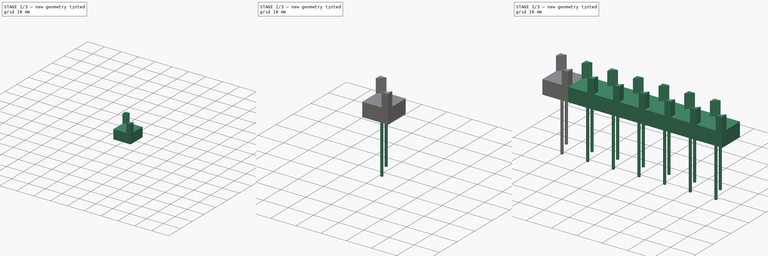
[diagram: build sequence overview — one tinted view per stage of 3, left to right]
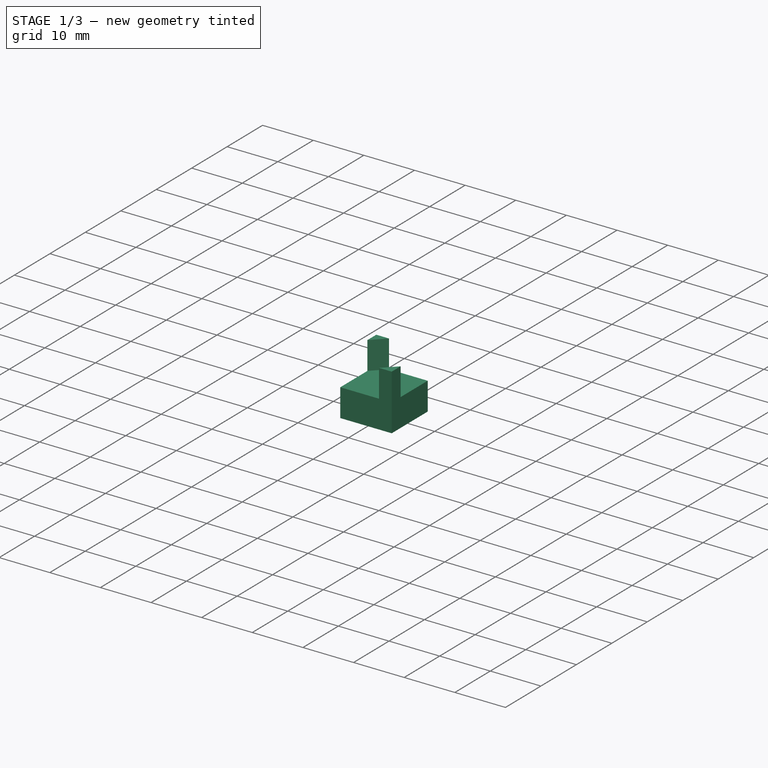
[diagram: stage 1 of 3 — iso view after this stage's code; geometry added in this stage tinted green]
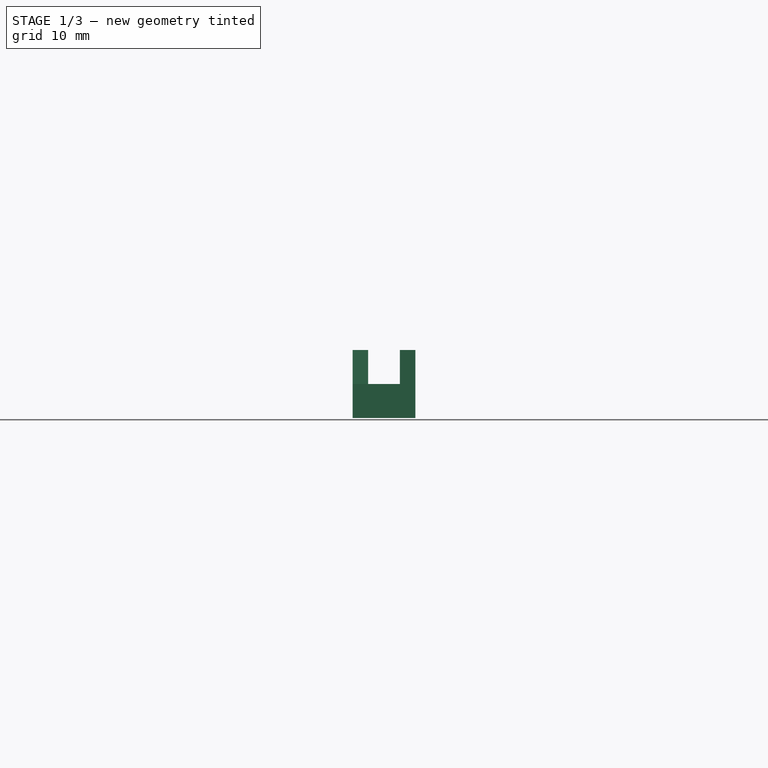
[diagram: stage 1 of 3 — front view after this stage's code; geometry added in this stage tinted green]
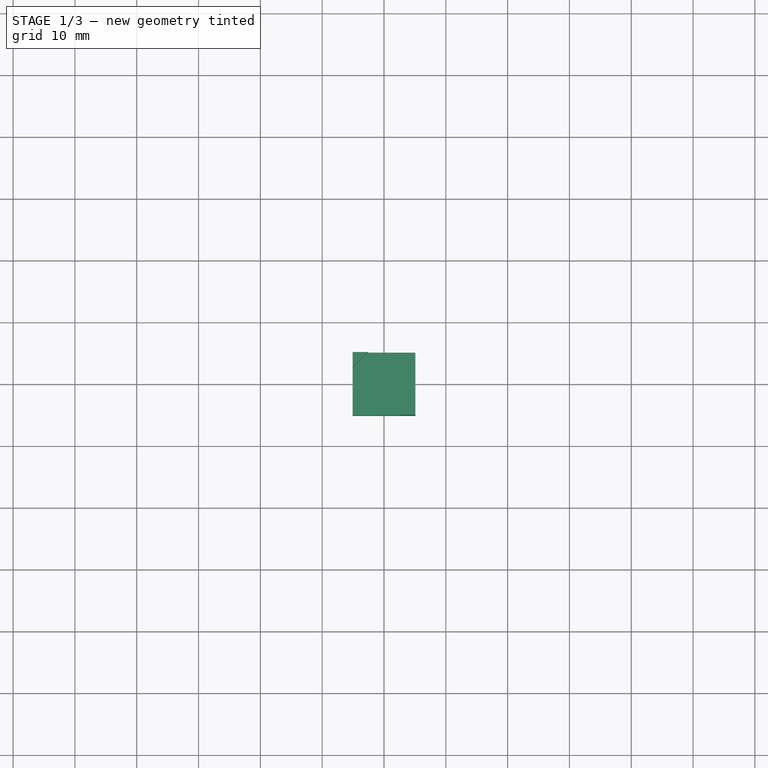
[diagram: stage 1 of 3 — top view after this stage's code; geometry added in this stage tinted green]
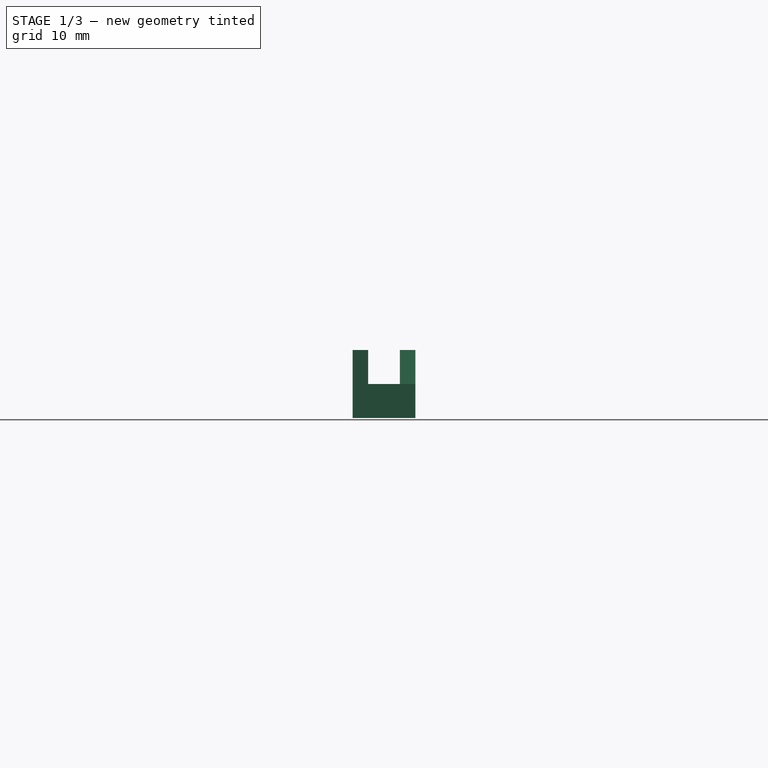
[diagram: stage 1 of 3 — right view after this stage's code; geometry added in this stage tinted green]
FCSTD DOCUMENT  (FreeCAD 0.21R33694 (Git))
Label: Display
License: All rights reserved
LicenseURL: http://en.wikipedia.org/wiki/All_rights_reserved
objects: App::Link×6, Sketcher::SketchObject×4, PartDesign::Pad×4, PartDesign::Body×2, PartDesign::LinearPattern×1, App::Part×1
note: 15 computed .brp shape members not serialized (recipe doc carries the construction recipe); baked Part::Feature solids carry a one-line shape summary decoded from their .brp

FEATURE [Sketcher::SketchObject] Sketch
  FullyConstrained = true
  MapMode = 5
  Support = -> [XY_Plane001]
  sketch-geometry (5):
    g0: LineSegment StartX=-5.075 StartY=5.075 StartZ=0 EndX=-5.075 EndY=-5.075 EndZ=0
    g1: LineSegment StartX=-5.075 StartY=-5.075 StartZ=0 EndX=5.075 EndY=-5.075 EndZ=0
    g2: LineSegment StartX=5.075 StartY=-5.075 StartZ=0 EndX=5.075 EndY=5.075 EndZ=0
    g3: LineSegment StartX=5.075 StartY=5.075 StartZ=0 EndX=-5.075 EndY=5.075 EndZ=0
    g4: Circle CenterX=0 CenterY=0 CenterZ=0 NormalX=0 NormalY=0 NormalZ=1 AngleXU=0 Radius=7.17713
  constraints (14):
    c: Coincident(g0,g1)
    c: Coincident(g1,g2)
    c: Coincident(g2,g3)
    c: Coincident(g3,g0)
    c: Equal(g0,g1)
    c: Equal(g0,g2)
    c: Equal(g0,g3)
    c: PointOnObject(g0,g4)
    c: PointOnObject(g1,g4)
    c: PointOnObject(g2,g4)
    c: PointOnObject(g3,g4)
    c: Coincident(g4,g-1)
    c: Horizontal(g3)
    c: Distance(g3) = 10.15
FEATURE [PartDesign::Pad] Pad
  Direction = (0,0,1)
  Length = 5.5
  Length2 = 10
  Profile = -> Sketch
  ReferenceAxis = -> Sketch [N_Axis]
  Type = 0
FEATURE [Sketcher::SketchObject] Sketch001
  ExternalGeometry = -> [Pad]
  FullyConstrained = true
  MapMode = 5
  Placement = pos=(0,0,5.5) rot=(0,0,1;0rad)
  Support = -> [Pad]
  sketch-geometry (6):
    g0: LineSegment StartX=-5.075 StartY=2.575 StartZ=0 EndX=-2.575 EndY=5.075 EndZ=0
    g1: LineSegment StartX=-5.075 StartY=5.075 StartZ=0 EndX=-5.075 EndY=2.575 EndZ=0
    g2: LineSegment StartX=-5.075 StartY=5.075 StartZ=0 EndX=-2.575 EndY=5.075 EndZ=0
    g3: LineSegment StartX=2.575 StartY=-5.075 StartZ=0 EndX=5.075 EndY=-5.075 EndZ=0
    g4: LineSegment StartX=5.075 StartY=-5.075 StartZ=0 EndX=5.075 EndY=-2.575 EndZ=0
    g5: LineSegment StartX=2.575 StartY=-5.075 StartZ=0 EndX=5.075 EndY=-2.575 EndZ=0
  constraints (16):
    c: PointOnObject(g0,g-3)
    c: PointOnObject(g0,g-4)
    c: Coincident(g1,g-4)
    c: Coincident(g1,g0)
    c: Coincident(g2,g1)
    c: Coincident(g2,g0)
    c: Equal(g2,g1)
    c: Distance(g2) = 2.5
    c: PointOnObject(g3,g-5)
    c: Coincident(g3,g-6)
    c: Coincident(g4,g3)
    c: PointOnObject(g4,g-6)
    c: Coincident(g5,g3)
    c: Coincident(g5,g4)
    c: Equal(g3,g4)
    c: Distance(g4) = 2.5
FEATURE [PartDesign::Pad] Pad001
  BaseFeature = -> Pad
  Direction = (0,0,1)
  Length = 5.5
  Length2 = 10
  Profile = -> Sketch001
  ReferenceAxis = -> Sketch001 [N_Axis]
  Type = 0
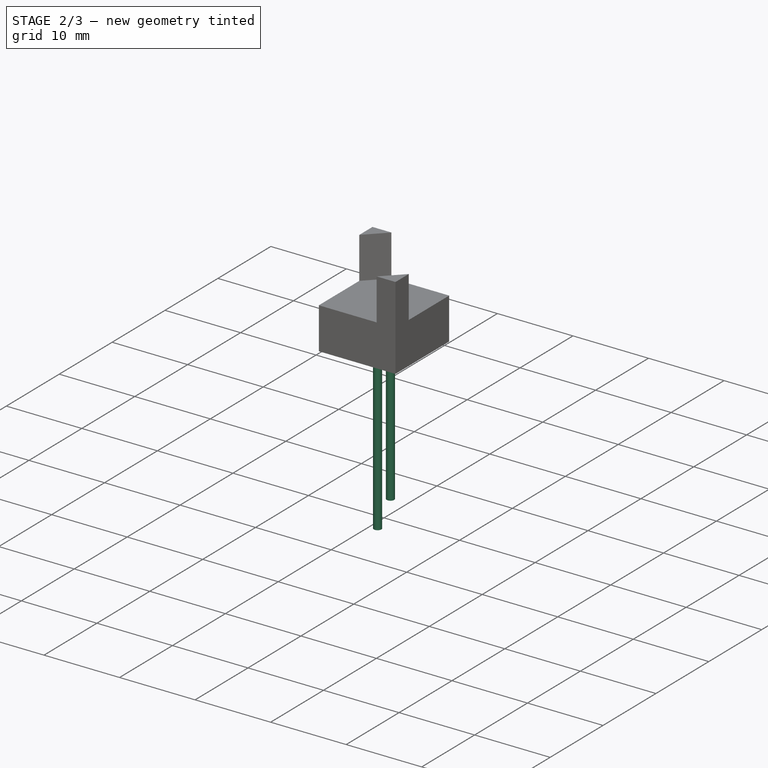
[diagram: stage 2 of 3 — iso view after this stage's code; geometry added in this stage tinted green]
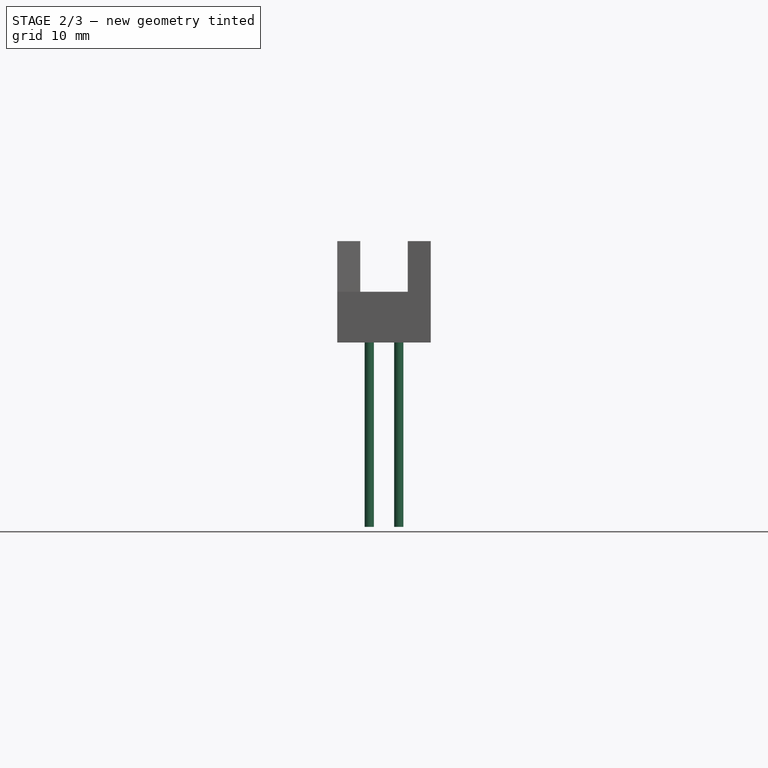
[diagram: stage 2 of 3 — front view after this stage's code; geometry added in this stage tinted green]
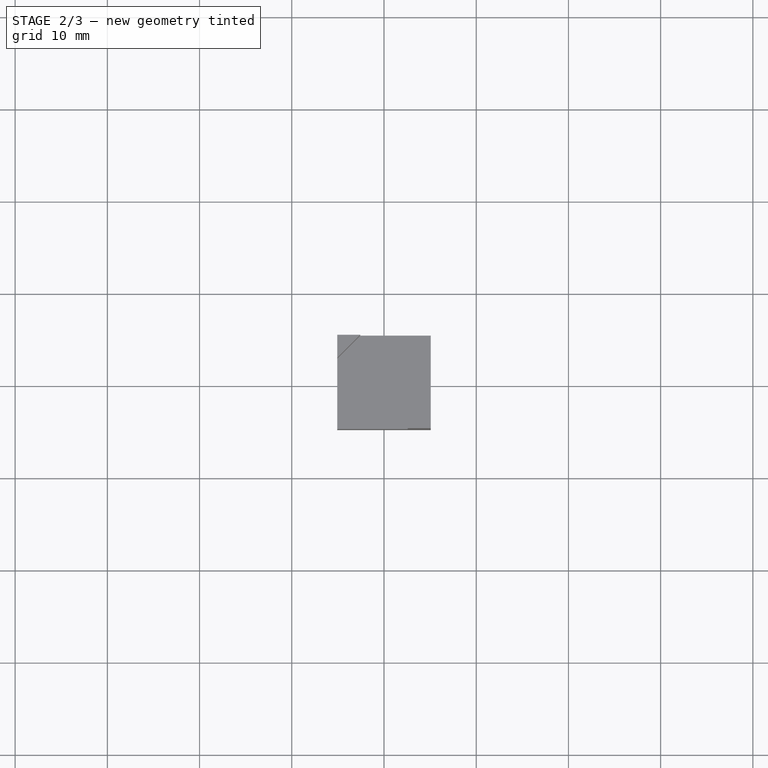
[diagram: stage 2 of 3 — top view after this stage's code; geometry added in this stage tinted green]
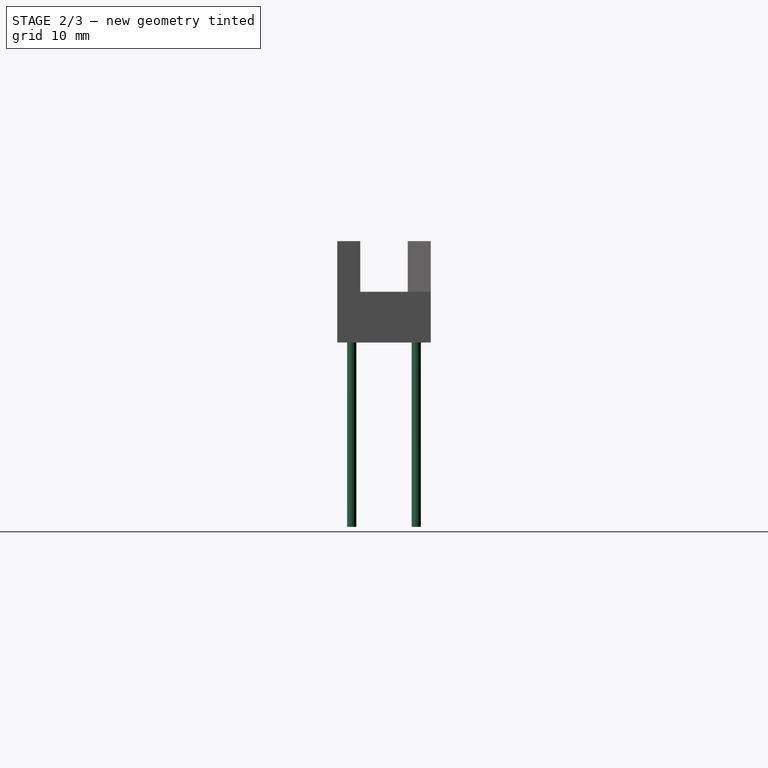
[diagram: stage 2 of 3 — right view after this stage's code; geometry added in this stage tinted green]
FEATURE [PartDesign::Body] Body001
  Group = -> [Sketch002,Pad002]
  Origin = -> Origin002
  Placement = pos=(0,0,26) rot=(0.486456,-0.196541,-0.851312;0.886231rad)
  Tip = -> Pad002
FEATURE [App::Link] Link  label="Body002"
  LinkPlacement = pos=(10.15,0,0) rot=(0,0,1;0rad)
  LinkTransform = true
  LinkedObject = -> Body001
  Placement = pos=(10.15,0,0) rot=(0,0,1;0rad)
FEATURE [App::Link] Link001  label="Body003"
  LinkPlacement = pos=(20.3,0,0) rot=(0,0,1;0rad)
  LinkTransform = true
  LinkedObject = -> Body001
  Placement = pos=(20.3,0,0) rot=(0,0,1;0rad)
FEATURE [App::Link] Link002  label="Body004"
  LinkPlacement = pos=(30.45,0,0) rot=(0,0,1;0rad)
  LinkTransform = true
  LinkedObject = -> Body001
  Placement = pos=(30.45,0,0) rot=(0,0,1;0rad)
FEATURE [App::Link] Link003  label="Body005"
  LinkPlacement = pos=(40.6,0,0) rot=(0,0,1;0rad)
  LinkTransform = true
  LinkedObject = -> Body001
  Placement = pos=(40.6,0,0) rot=(0,0,1;0rad)
FEATURE [App::Link] Link004  label="Body006"
  LinkPlacement = pos=(50.75,0,0) rot=(0,0,1;0rad)
  LinkTransform = true
  LinkedObject = -> Body001
  Placement = pos=(50.75,0,0) rot=(0,0,1;0rad)
FEATURE [App::Link] Link005  label="Body007"
  LinkPlacement = pos=(60.9,0,0) rot=(0,0,1;0rad)
  LinkTransform = true
  LinkedObject = -> Body001
  Placement = pos=(60.9,0,0) rot=(0,0,1;0rad)
FEATURE [Sketcher::SketchObject] Sketch003
  FullyConstrained = true
  MapMode = 5
  Placement = pos=(0,0,0) rot=(1,0,0;3.14159rad)
  Support = -> [Pad001]
  sketch-geometry (2):
    g0: Circle CenterX=1.6 CenterY=3.5 CenterZ=0 NormalX=0 NormalY=0 NormalZ=1 AngleXU=0 Radius=0.5
    g1: Circle CenterX=-1.6 CenterY=-3.5 CenterZ=0 NormalX=0 NormalY=0 NormalZ=1 AngleXU=0 Radius=0.5
  constraints (5):
    c: Symmetric(g0,g1,g-1)
    c: DistanceY(g1,g0) = 7
    c: DistanceX(g1,g0) = 3.2
    c: Diameter(g0) = 1
    c: Equal(g0,g1)
FEATURE [PartDesign::Pad] Pad003
  BaseFeature = -> Pad001
  Direction = (0,0,-1)
  Length = 20
  Length2 = 10
  Profile = -> Sketch003
  ReferenceAxis = -> Sketch003 [N_Axis]
  Type = 0
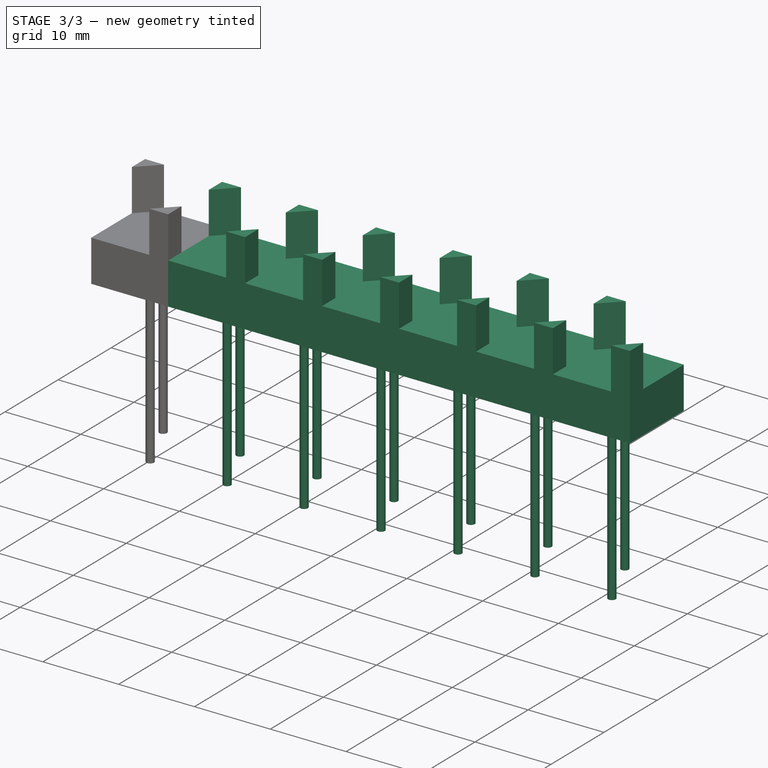
[diagram: stage 3 of 3 — iso view after this stage's code; geometry added in this stage tinted green]
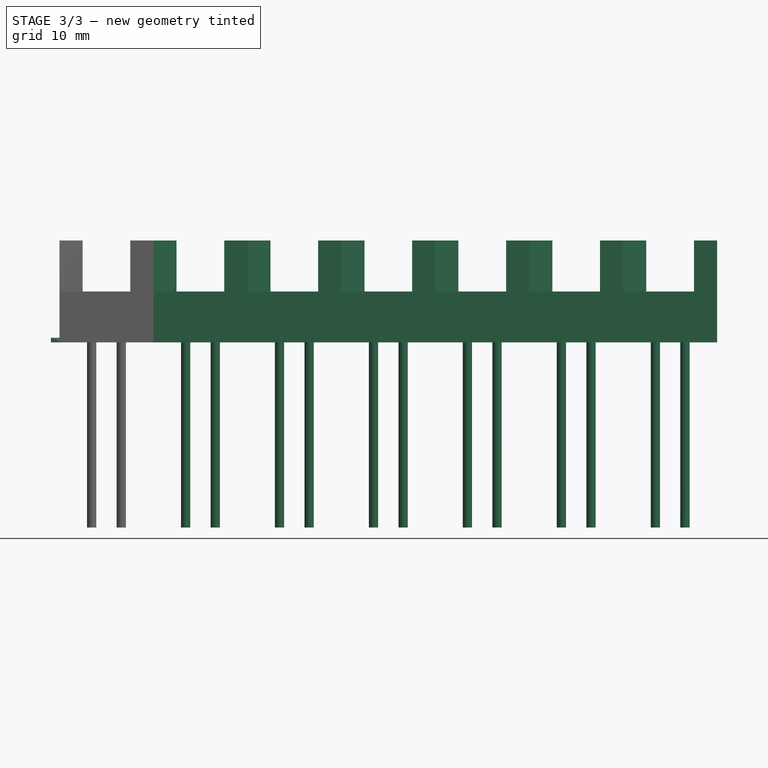
[diagram: stage 3 of 3 — front view after this stage's code; geometry added in this stage tinted green]
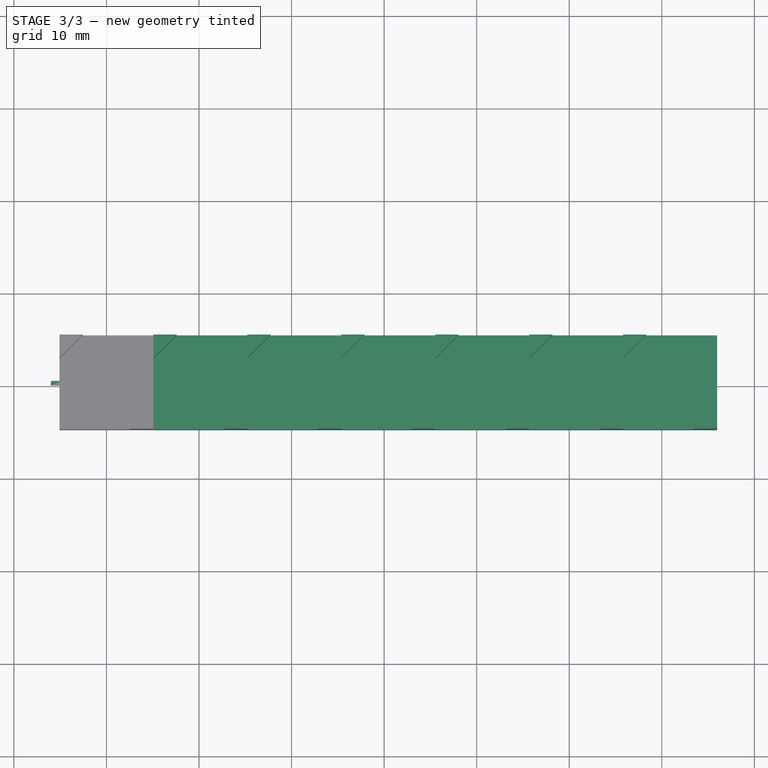
[diagram: stage 3 of 3 — top view after this stage's code; geometry added in this stage tinted green]
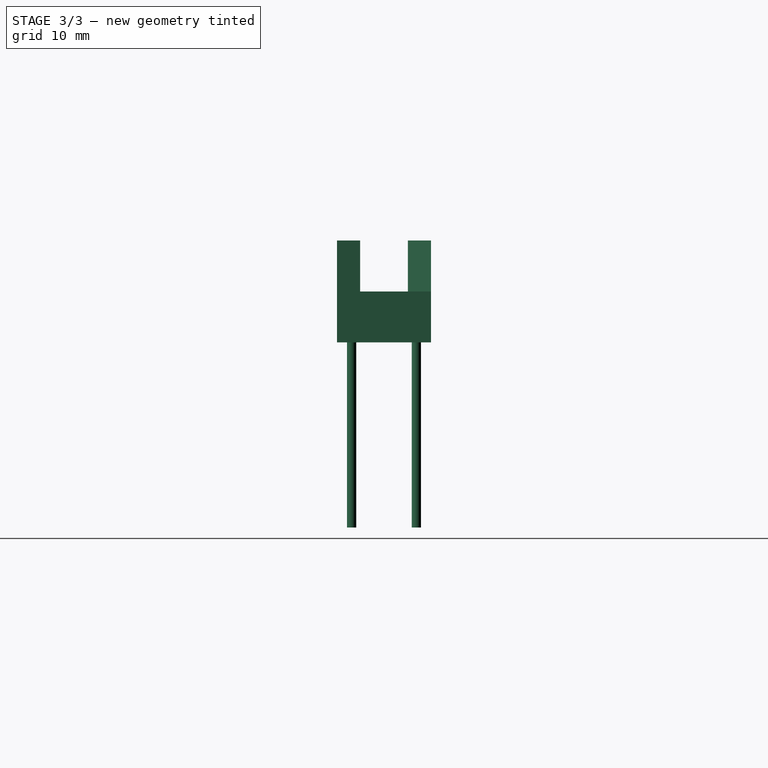
[diagram: stage 3 of 3 — right view after this stage's code; geometry added in this stage tinted green]
FEATURE [Sketcher::SketchObject] Sketch002
  FullyConstrained = true
  MapMode = 5
  Support = -> [XY_Plane002]
  sketch-geometry (9):
    g0: LineSegment StartX=-6 StartY=0.25 StartZ=0 EndX=-6 EndY=-0.25 EndZ=0
    g1: LineSegment StartX=-6 StartY=0.25 StartZ=0 EndX=-4.74342 EndY=0.25 EndZ=0
    g2: LineSegment StartX=-6 StartY=-0.25 StartZ=0 EndX=-4.74342 EndY=-0.25 EndZ=0
    g3: LineSegment StartX=4.74342 StartY=0.25 StartZ=0 EndX=6 EndY=0.25 EndZ=0
    g4: LineSegment StartX=6 StartY=0.25 StartZ=0 EndX=6 EndY=-0.25 EndZ=0
    g5: LineSegment StartX=6 StartY=-0.25 StartZ=0 EndX=4.74342 EndY=-0.25 EndZ=0
    g6: ArcOfCircle CenterX=-4e-16 CenterY=0 CenterZ=0 NormalX=0 NormalY=0 NormalZ=1 AngleXU=0 Radius=4.75 StartAngle=3.19425 EndAngle=6.23053
    g7: LineSegment StartX=4.74342 StartY=-0.25 StartZ=0 EndX=4.74342 EndY=0.25 EndZ=0
    g8: ArcOfCircle CenterX=-4e-16 CenterY=0 CenterZ=0 NormalX=0 NormalY=0 NormalZ=1 AngleXU=0 Radius=4.75 StartAngle=0.0526559 EndAngle=3.08894
  constraints (24):
    c: Coincident(g1,g0)
    c: Coincident(g2,g0)
    c: Horizontal(g2)
    c: Horizontal(g3)
    c: Coincident(g4,g3)
    c: Vertical(g4)
    c: Coincident(g5,g4)
    c: Horizontal(g5)
    c: Symmetric(g1,g3,g-2)
    c: Symmetric(g0,g3,g-2)
    c: Distance(g0,g3) = 12
    c: Coincident(g6,g2)
    c: Coincident(g6,g5)
    c: Symmetric(g0,g0,g-1)
    c: Radius(g6) = 4.75
    c: Distance(g0) = 0.5
    c: Coincident(g7,g5)
    c: Coincident(g7,g3)
    c: Vertical(g7)
    c: Equal(g0,g4)
    c: Coincident(g8,g6)
    c: Coincident(g8,g3)
    c: Coincident(g8,g1)
    c: Coincident(g-1,g6)
FEATURE [PartDesign::Pad] Pad002
  Direction = (0,0,1)
  Length = 0.5
  Length2 = 10
  Profile = -> Sketch002
  ReferenceAxis = -> Sketch002 [N_Axis]
  Type = 0
FEATURE [PartDesign::LinearPattern] LinearPattern
  BaseFeature = -> Pad003
  Direction = -> Sketch [H_Axis]
  Length = 60.9
  Occurrences = 7
  Originals = -> [Pad,Pad001,Pad003]
FEATURE [PartDesign::Body] Body
  Group = -> [Sketch,Pad,Sketch001,Pad001,Sketch003,Pad003,LinearPattern]
  Origin = -> Origin001
  Placement = pos=(0,0,16.5) rot=(0,0,1;0rad)
  Tip = -> LinearPattern
FEATURE [App::Part] Part
  Group = -> [Body,Body001,Link,Link001,Link002,Link003,Link004,Link005]
  Origin = -> Origin
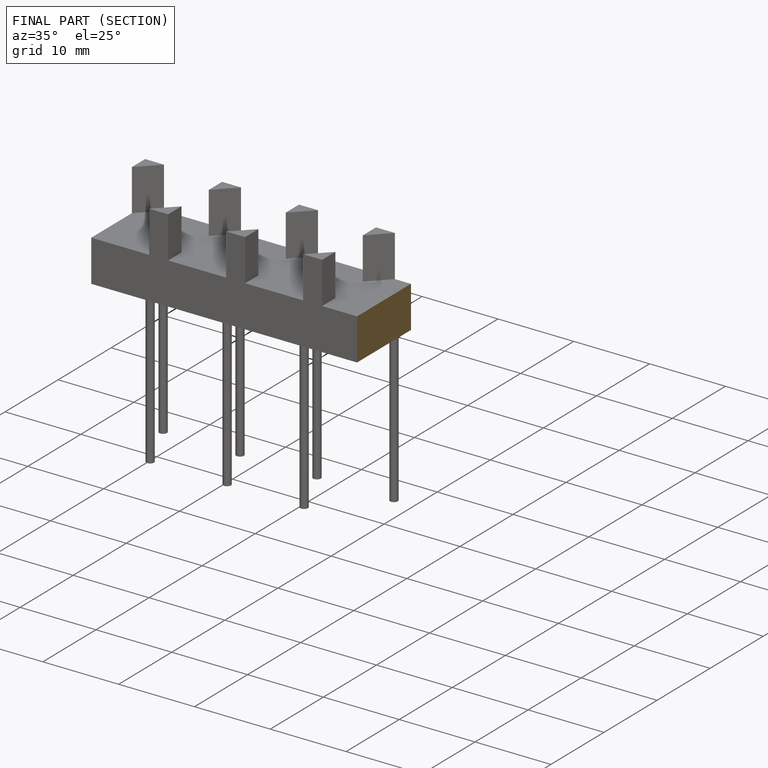
[diagram: finished part — half-section view (interior)]
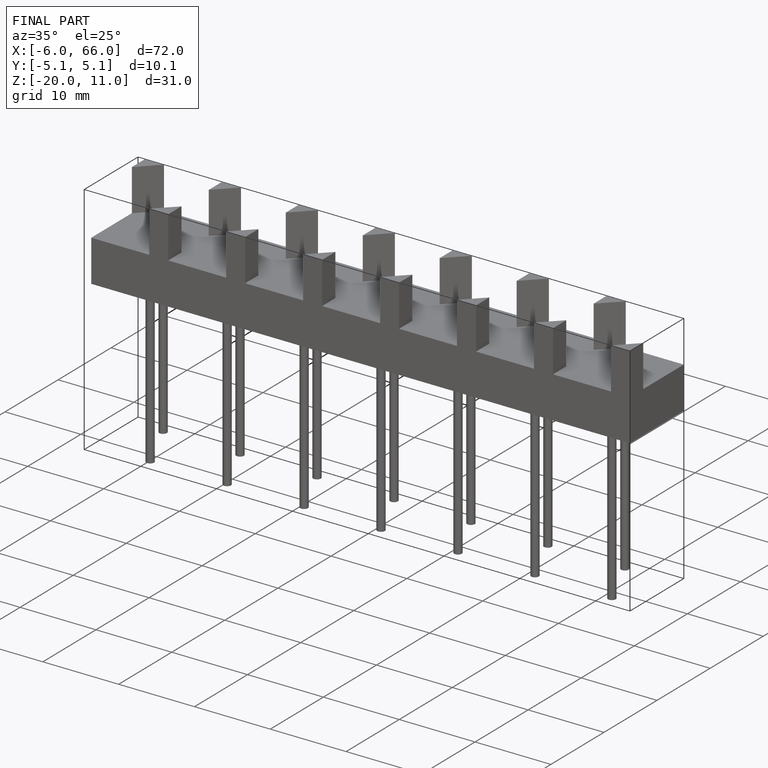
[diagram: finished part — iso view with bounding-box wireframe]
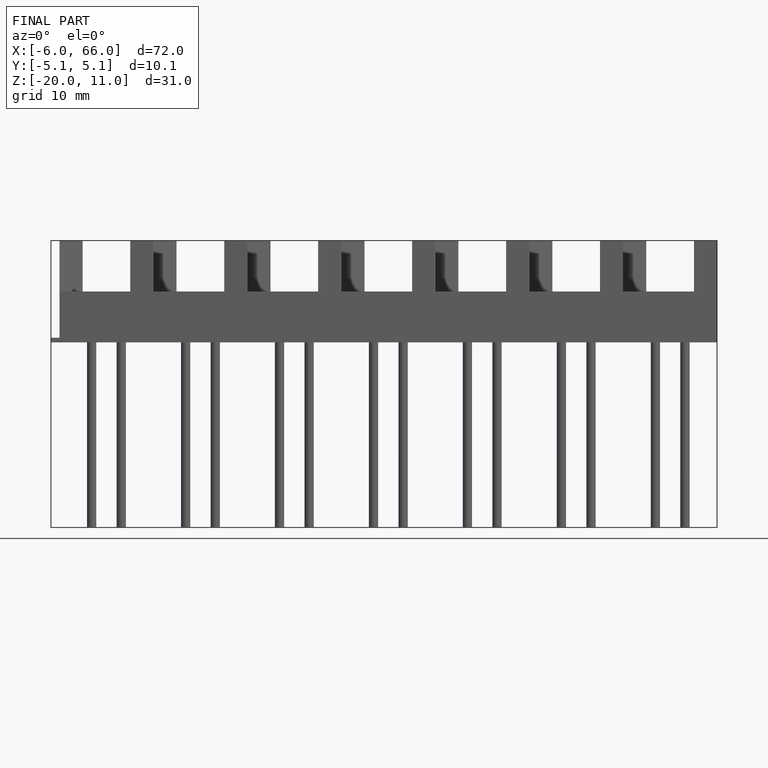
[diagram: finished part — front view with bounding-box wireframe]
